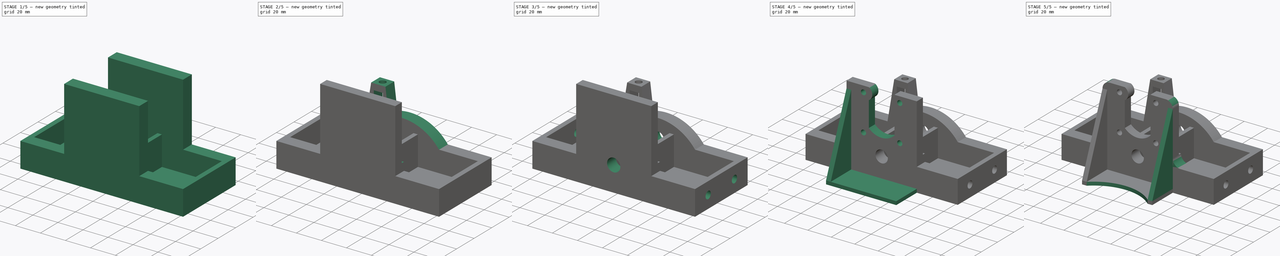
[diagram: build sequence overview — one tinted view per stage of 5, left to right]
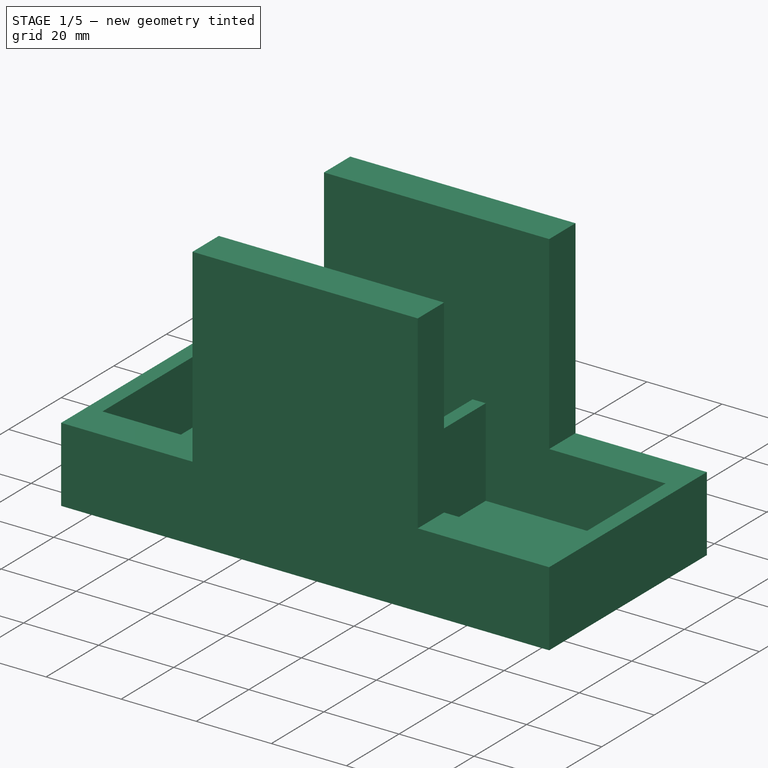
[diagram: stage 1 of 5 — iso view after this stage's code; geometry added in this stage tinted green]
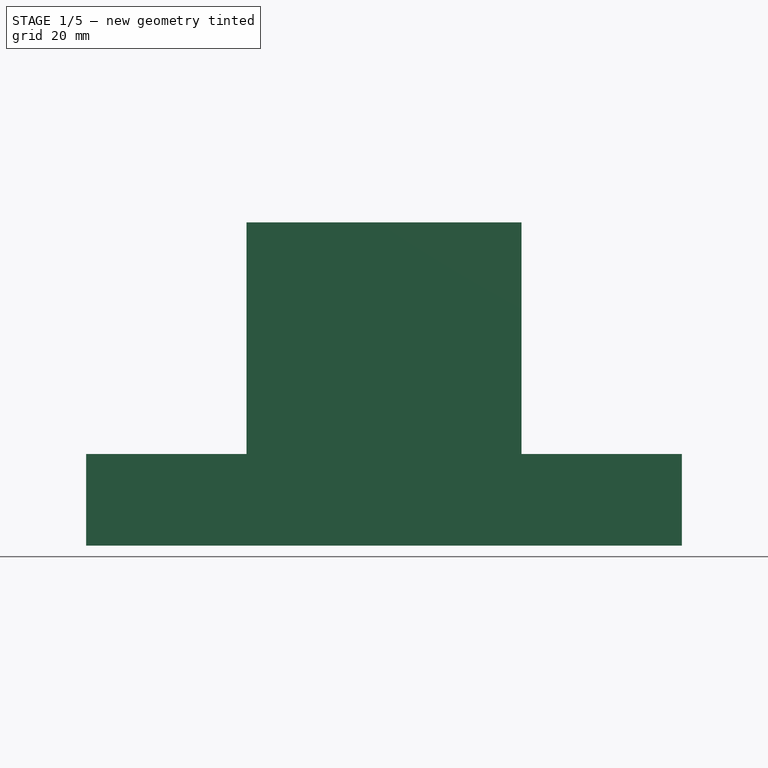
[diagram: stage 1 of 5 — front view after this stage's code; geometry added in this stage tinted green]
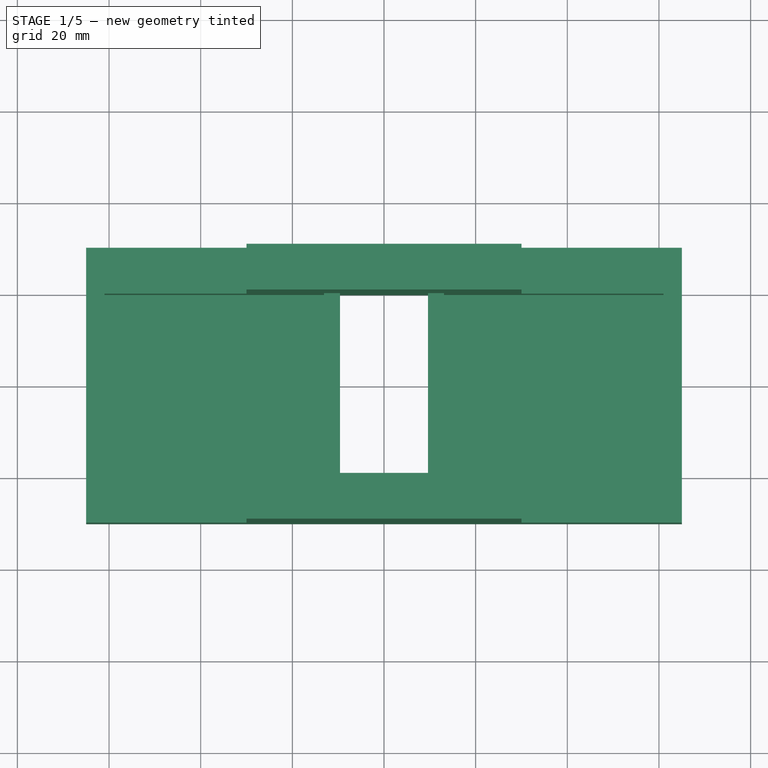
[diagram: stage 1 of 5 — top view after this stage's code; geometry added in this stage tinted green]
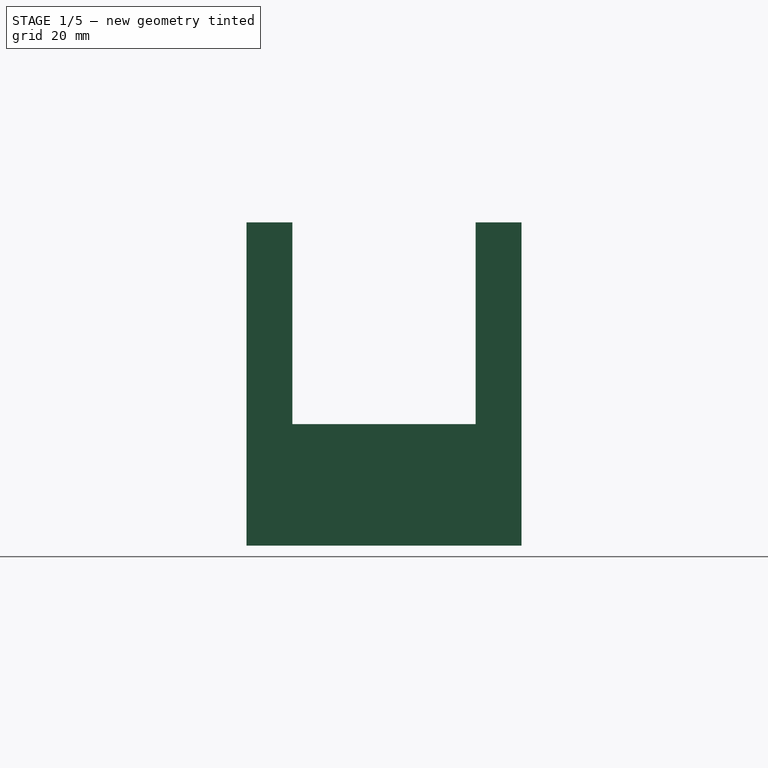
[diagram: stage 1 of 5 — right view after this stage's code; geometry added in this stage tinted green]
FCSTD DOCUMENT
Label: Z_MotorMount
objects: Sketcher::SketchObject×15, PartDesign::Pocket×11, PartDesign::Pad×4, PartDesign::Mirrored×2, PartDesign::Fillet×2, Part::Feature×1
note: 50 computed .brp shape members not serialized (recipe doc carries the construction recipe); baked Part::Feature solids carry a one-line shape summary decoded from their .brp

FEATURE [Sketcher::SketchObject] Sketch
  Placement = pos=(0,0,0) rot=(1,0,0;1.5708rad)
  sketch-geometry (8):
    g0: LineSegment StartX=-65 StartY=0 StartZ=0 EndX=65 EndY=0 EndZ=0
    g1: LineSegment StartX=65 StartY=0 StartZ=0 EndX=65 EndY=20 EndZ=0
    g2: LineSegment StartX=65 StartY=20 StartZ=0 EndX=30 EndY=20 EndZ=0
    g3: LineSegment StartX=-65 StartY=20 StartZ=0 EndX=-65 EndY=0 EndZ=0
    g4: LineSegment StartX=30 StartY=20 StartZ=0 EndX=30 EndY=70.552 EndZ=0
    g5: LineSegment StartX=30 StartY=70.552 StartZ=0 EndX=-30 EndY=70.552 EndZ=0
    g6: LineSegment StartX=-30 StartY=70.552 StartZ=0 EndX=-30 EndY=20 EndZ=0
    g7: LineSegment StartX=-30 StartY=20 StartZ=0 EndX=-65 EndY=20 EndZ=0
  constraints (24):
    c: Coincident(g0,g1)
    c: Coincident(g1,g2)
    c: Coincident(g7,g3)
    c: Coincident(g3,g0)
    c: Horizontal(g0)
    c: Horizontal(g2)
    c: Vertical(g1)
    c: Vertical(g3)
    c: Coincident(g4,g5)
    c: Coincident(g5,g6)
    c: Horizontal(g5)
    c: Vertical(g4)
    c: Vertical(g6)
    c: Coincident(g2,g4)
    c: Coincident(g7,g6)
    c: Tangent(g2,g7)
    c: Equal(g7,g2)
    c: Equal(g3,g1)
    c: DistanceX(g0) = 130
    c: DistanceY(g1) = 20
    c: DistanceX(g5) = -60
    c: PointOnObject(g0,g-1)
    c: Symmetric(g5,g4,g-2)
    c: DistanceY(g0,g5) = 70.552
FEATURE [PartDesign::Pad] Pad
  Length = 60
  Length2 = 100
  Midplane = true
  Placement = pos=(0,0,0) rot=(1,0,0;1.5708rad)
  Sketch = -> Sketch
  Type = 0
FEATURE [Sketcher::SketchObject] Sketch001
  ExternalGeometry = -> [Pad]
  Placement = pos=(0,0,70.552) rot=(0,0,1;3.14159rad)
  Support = -> Pad [Face6]
  sketch-geometry (5):
    g0: LineSegment StartX=-61 StartY=20 StartZ=0 EndX=61 EndY=20 EndZ=0
    g1: LineSegment StartX=61 StartY=20 StartZ=0 EndX=61 EndY=-20 EndZ=0
    g2: LineSegment StartX=61 StartY=-20 StartZ=0 EndX=-61 EndY=-20 EndZ=0
    g3: LineSegment StartX=-61 StartY=-20 StartZ=0 EndX=-61 EndY=20 EndZ=0
    g4: GeomPoint [constr] X=0 Y=0 Z=0
  constraints (12):
    c: Coincident(g0,g1)
    c: Coincident(g1,g2)
    c: Coincident(g2,g3)
    c: Coincident(g3,g0)
    c: Horizontal(g0)
    c: Horizontal(g2)
    c: Vertical(g1)
    c: Vertical(g3)
    c: Symmetric(g2,g0,g4)
    c: Coincident(g4,g-1)
    c: DistanceX(g0,g-3) = 4
    c: DistanceY(g1,g-3) = -10
FEATURE [PartDesign::Pocket] Pocket
  Length = 67.54
  Placement = pos=(0,0,0) rot=(1,0,0;1.5708rad)
  Sketch = -> Sketch001
  Type = 0
FEATURE [Sketcher::SketchObject] Sketch002
  ExternalGeometry = -> [Pocket]
  Placement = pos=(0,20,0) rot=(1,0,0;1.5708rad)
  Support = -> Pocket [Face15]
  sketch-geometry (4):
    g0: LineSegment StartX=-13.095 StartY=3.012 StartZ=0 EndX=13.095 EndY=3.012 EndZ=0
    g1: LineSegment StartX=13.095 StartY=3.012 StartZ=0 EndX=13.095 EndY=26.512 EndZ=0
    g2: LineSegment StartX=13.095 StartY=26.512 StartZ=0 EndX=-13.095 EndY=26.512 EndZ=0
    g3: LineSegment StartX=-13.095 StartY=26.512 StartZ=0 EndX=-13.095 EndY=3.012 EndZ=0
  constraints (12):
    c: Coincident(g0,g1)
    c: Coincident(g1,g2)
    c: Coincident(g2,g3)
    c: Coincident(g3,g0)
    c: Horizontal(g0)
    c: Horizontal(g2)
    c: Vertical(g1)
    c: Vertical(g3)
    c: DistanceX(g2) = -26.19
    c: DistanceY(g3) = -23.5
    c: Symmetric(g2,g1,g-2)
    c: PointOnObject(g0,g-3)
FEATURE [PartDesign::Pad] Pad001
  Length = 10
  Length2 = 100
  Placement = pos=(0,0,0) rot=(1,0,0;1.5708rad)
  Sketch = -> Sketch002
  Type = 1
FEATURE [Sketcher::SketchObject] Sketch003
  ExternalGeometry = -> [Pad001]
  Placement = pos=(0,0,26.512) rot=(0,0,1;3.14159rad)
  Support = -> Pad001 [Face21]
  sketch-geometry (4):
    g0: LineSegment StartX=-9.595 StartY=20 StartZ=0 EndX=9.595 EndY=20 EndZ=0
    g1: LineSegment StartX=9.595 StartY=20 StartZ=0 EndX=9.595 EndY=-20 EndZ=0
    g2: LineSegment StartX=9.595 StartY=-20 StartZ=0 EndX=-9.595 EndY=-20 EndZ=0
    g3: LineSegment StartX=-9.595 StartY=-20 StartZ=0 EndX=-9.595 EndY=20 EndZ=0
  constraints (11):
    c: DistanceX(g-3,g0) = -3.5
    c: Coincident(g3,g2)
    c: Coincident(g2,g1)
    c: Horizontal(g0)
    c: Coincident(g0,g1)
    c: Coincident(g0,g3)
    c: Vertical(g3)
    c: Vertical(g1)
    c: Symmetric(g2,g1,g-2)
    c: PointOnObject(g-3,g0)
    c: PointOnObject(g-3,g2)
FEATURE [PartDesign::Pocket] Pocket001
  Length = 5
  Placement = pos=(0,0,0) rot=(1,0,0;1.5708rad)
  Sketch = -> Sketch003
  Type = 1
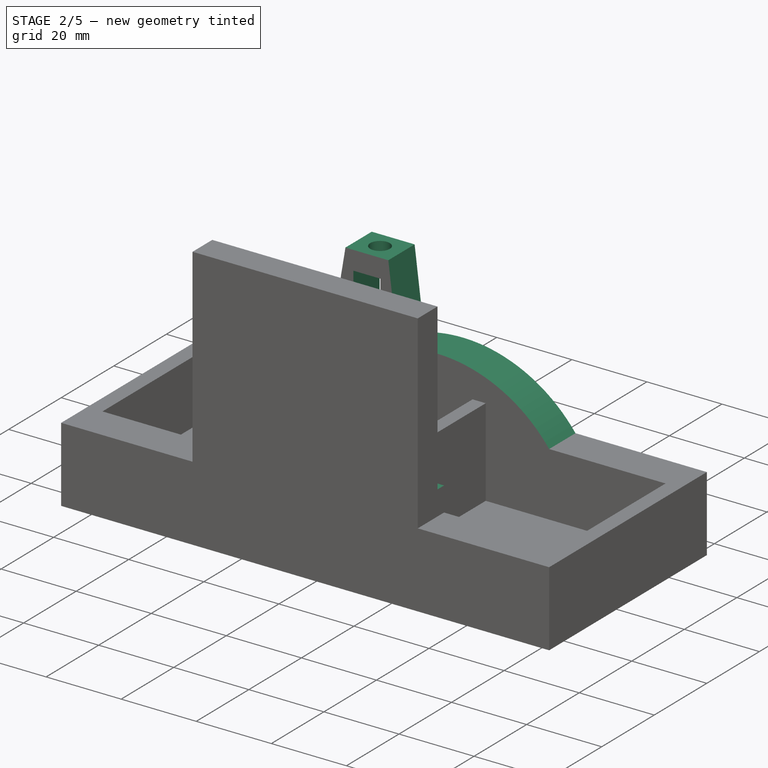
[diagram: stage 2 of 5 — iso view after this stage's code; geometry added in this stage tinted green]
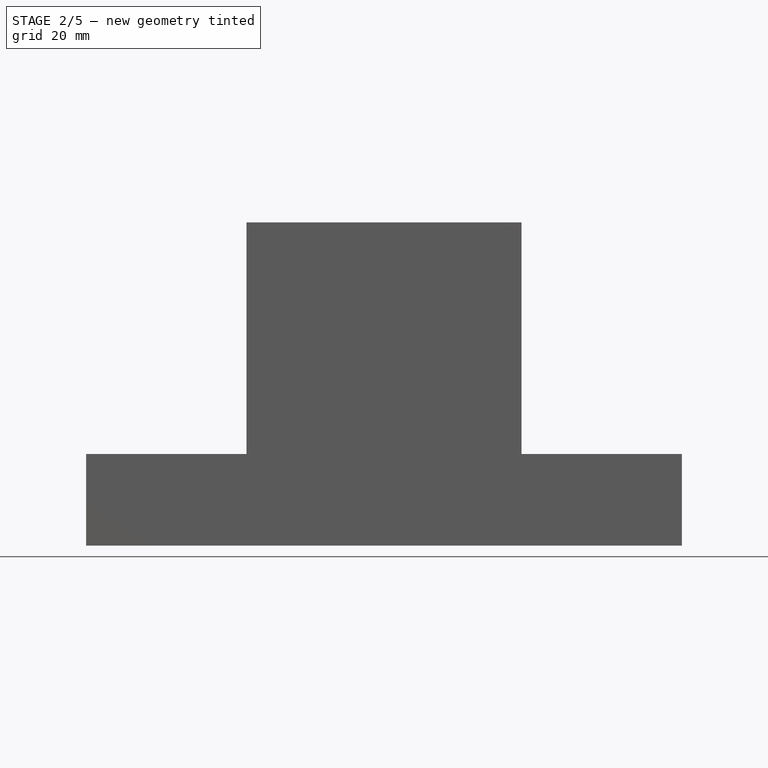
[diagram: stage 2 of 5 — front view after this stage's code; geometry added in this stage tinted green]
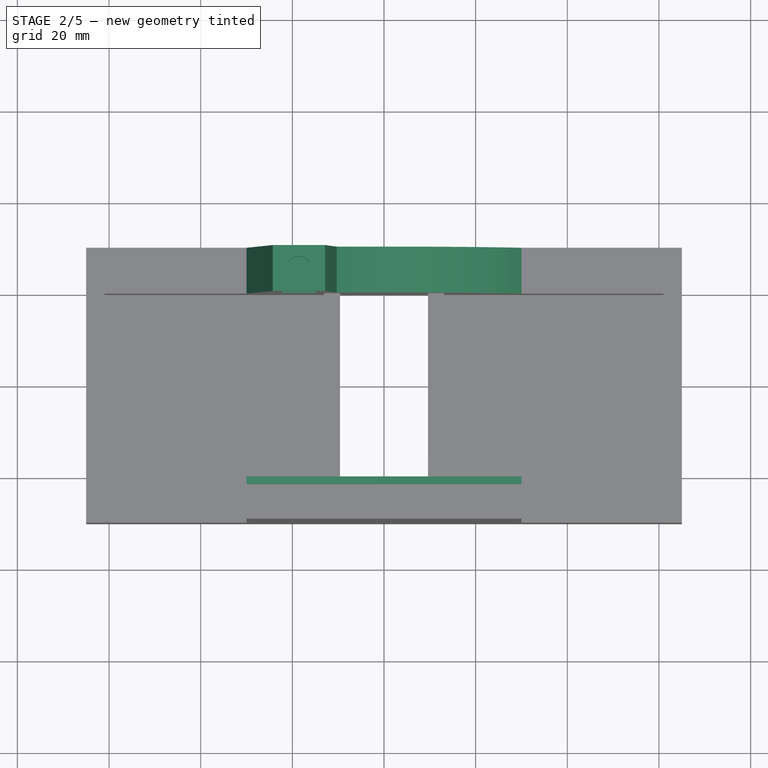
[diagram: stage 2 of 5 — top view after this stage's code; geometry added in this stage tinted green]
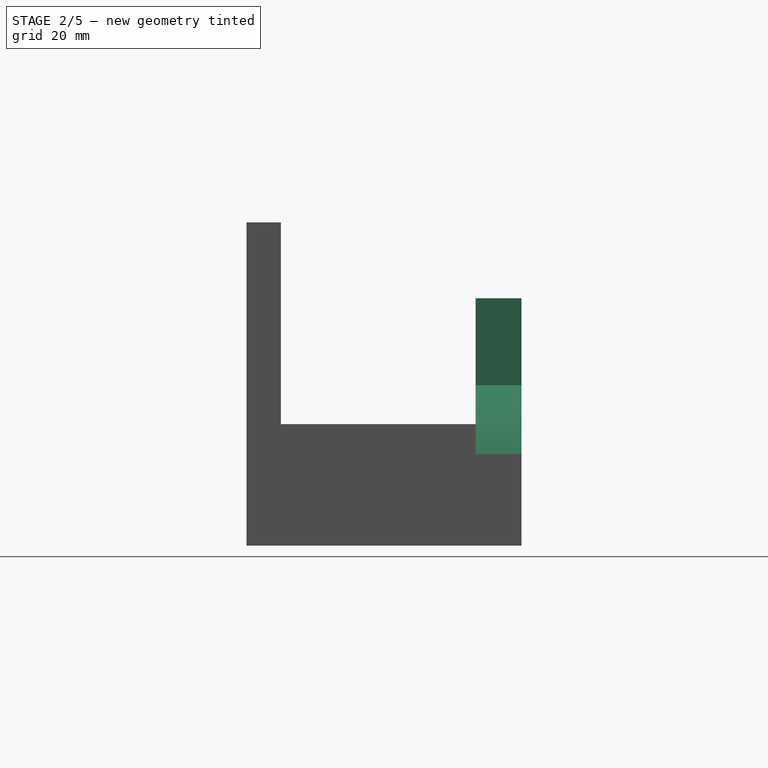
[diagram: stage 2 of 5 — right view after this stage's code; geometry added in this stage tinted green]
FEATURE [Sketcher::SketchObject] Sketch004
  ExternalGeometry = -> [Pocket001]
  Placement = pos=(0,-20,0) rot=(-1,0,0;1.5708rad)
  Support = -> Pocket001 [Face10]
  sketch-geometry (4):
    g0: LineSegment StartX=-30 StartY=-26.512 StartZ=0 EndX=-30 EndY=-70.552 EndZ=0
    g1: LineSegment StartX=-30 StartY=-70.552 StartZ=0 EndX=30 EndY=-70.552 EndZ=0
    g2: LineSegment StartX=30 StartY=-70.552 StartZ=0 EndX=30 EndY=-26.512 EndZ=0
    g3: LineSegment StartX=30 StartY=-26.512 StartZ=0 EndX=-30 EndY=-26.512 EndZ=0
  constraints (11):
    c: Coincident(g1,g2)
    c: Horizontal(g1)
    c: Vertical(g0)
    c: Vertical(g2)
    c: Equal(g0,g2)
    c: Symmetric(g3,g3,g-2)
    c: Coincident(g3,g0)
    c: Coincident(g1,g0)
    c: Coincident(g3,g2)
    c: PointOnObject(g-3,g3)
    c: Coincident(g0,g-4)
FEATURE [PartDesign::Pocket] Pocket002
  Length = 2.5
  Placement = pos=(0,0,0) rot=(1,0,0;1.5708rad)
  Sketch = -> Sketch004
  Type = 0
FEATURE [Sketcher::SketchObject] Sketch005
  ExternalGeometry = -> [Pocket002]
  Placement = pos=(0,30,0) rot=(-1,0,0;1.5708rad)
  Support = -> Pocket002 [Face4]
  sketch-geometry (8):
    g0: ArcOfCircle CenterX=0 CenterY=2.5 CenterZ=0 NormalX=0 NormalY=0 NormalZ=1 Radius=37.5 StartAngle=4.43392 EndAngle=5.63968
    g1: LineSegment StartX=-10.308 StartY=-33.5554 StartZ=0 EndX=-12.85 EndY=-54 EndZ=0
    g2: LineSegment StartX=-12.85 StartY=-54 StartZ=0 EndX=-24.272 EndY=-54 EndZ=0
    g3: LineSegment StartX=-24.272 StartY=-54 StartZ=0 EndX=-30 EndY=-20 EndZ=0
    g4: GeomPoint [constr] X=-18.561 Y=-54 Z=0
    g5: LineSegment StartX=-30 StartY=-20 StartZ=0 EndX=-30 EndY=-71.552 EndZ=0
    g6: LineSegment StartX=-30 StartY=-71.552 StartZ=0 EndX=30 EndY=-71.552 EndZ=0
    g7: LineSegment StartX=30 StartY=-71.552 StartZ=0 EndX=30 EndY=-20 EndZ=0
  constraints (21):
    c: PointOnObject(g0,g-2)
    c: Radius(g0) = 37.5
    c: Coincident(g1,g2)
    c: Horizontal(g2)
    c: Coincident(g2,g3)
    c: Symmetric(g2,g1,g4)
    c: DistanceX(g2) = -11.422
    c: Horizontal(g6)
    c: Coincident(g6,g7)
    c: Vertical(g7)
    c: Coincident(g0,g7)
    c: Coincident(g0,g1)
    c: Coincident(g3,g5)
    c: Coincident(g5,g6)
    c: DistanceX(g-1,g4) = -18.561
    c: Vertical(g5)
    c: Coincident(g3,g-3)
    c: DistanceY(g-1,g2) = -54
    c: DistanceX(g-3,g0) = 54.692
    c: DistanceY(g6,g-5) = 1
    c: Coincident(g0,g-4)
FEATURE [PartDesign::Pocket] Pocket003
  Length = 10
  Placement = pos=(0,0,0) rot=(1,0,0;1.5708rad)
  Sketch = -> Sketch005
  Type = 0
FEATURE [Sketcher::SketchObject] Sketch007  label="Sketch006"
  ExternalGeometry = -> [Pocket003]
  Placement = pos=(0,30,0) rot=(-1,0,0;1.5708rad)
  Support = -> Pocket003 [Face4]
  sketch-geometry (7):
    g0: LineSegment StartX=-22.161 StartY=-27 StartZ=0 EndX=-14.961 EndY=-27 EndZ=0
    g1: LineSegment StartX=-14.961 StartY=-27 StartZ=0 EndX=-14.961 EndY=-49 EndZ=0
    g2: LineSegment StartX=-14.961 StartY=-49 StartZ=0 EndX=-22.161 EndY=-49 EndZ=0
    g3: LineSegment StartX=-22.161 StartY=-49 StartZ=0 EndX=-22.161 EndY=-27 EndZ=0
    g4: GeomPoint [constr] X=-18.561 Y=-49 Z=0
    g5: GeomPoint [constr] X=-18.561 Y=-54 Z=0
    g6: LineSegment [constr] StartX=-18.561 StartY=-49 StartZ=0 EndX=-18.561 EndY=-54 EndZ=0
  constraints (16):
    c: Coincident(g0,g1)
    c: Coincident(g1,g2)
    c: Coincident(g2,g3)
    c: Coincident(g3,g0)
    c: Horizontal(g0)
    c: Horizontal(g2)
    c: Vertical(g1)
    c: Vertical(g3)
    c: DistanceY(g3) = 22
    c: DistanceX(g0) = 7.2
    c: Symmetric(g2,g2,g4)
    c: Coincident(g6,g4)
    c: Coincident(g6,g5)
    c: Vertical(g6)
    c: DistanceY(g-1,g1) = -49
    c: Symmetric(g-3,g-3,g5)
FEATURE [PartDesign::Pocket] Pocket004
  Length = 10
  Placement = pos=(0,0,0) rot=(1,0,0;1.5708rad)
  Sketch = -> Sketch007
  Type = 0
FEATURE [Sketcher::SketchObject] Sketch012  label="Sketch007"
  ExternalGeometry = -> [Pocket004]
  Placement = pos=(0,0,54) rot=(0,0,1;3.14159rad)
  Support = -> Pocket004 [Face18]
  sketch-geometry (3):
    g0: Circle CenterX=18.561 CenterY=-25 CenterZ=0 NormalX=0 NormalY=0 NormalZ=1 Radius=2.6
    g1: LineSegment [constr] StartX=18.561 StartY=-25 StartZ=0 EndX=18.561 EndY=-30 EndZ=0
    g2: LineSegment [constr] StartX=18.561 StartY=-25 StartZ=0 EndX=24.272 EndY=-25 EndZ=0
  constraints (7):
    c: Coincident(g1,g0)
    c: Coincident(g2,g0)
    c: Horizontal(g2)
    c: Vertical(g1)
    c: Radius(g0) = 2.6
    c: Symmetric(g-4,g-4,g1)
    c: Symmetric(g-3,g-3,g2)
FEATURE [PartDesign::Pocket] Pocket005
  Length = 6
  Placement = pos=(0,0,0) rot=(1,0,0;1.5708rad)
  Sketch = -> Sketch012
  Type = 0
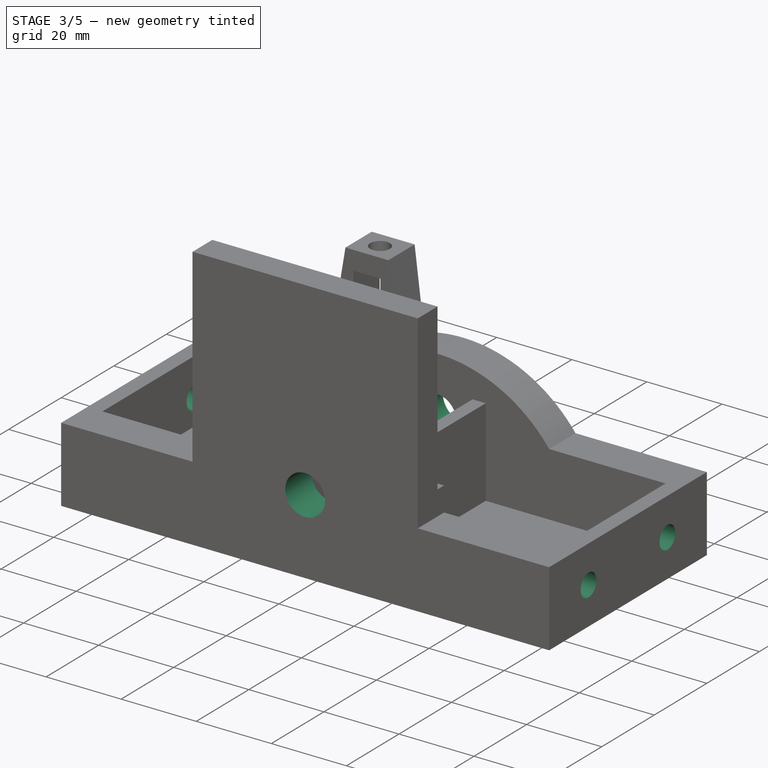
[diagram: stage 3 of 5 — iso view after this stage's code; geometry added in this stage tinted green]
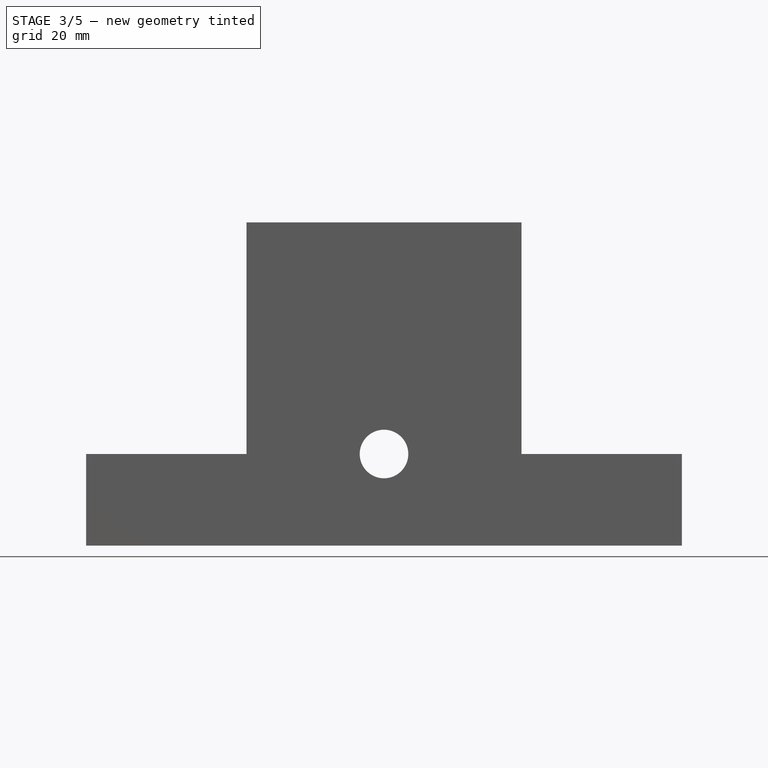
[diagram: stage 3 of 5 — front view after this stage's code; geometry added in this stage tinted green]
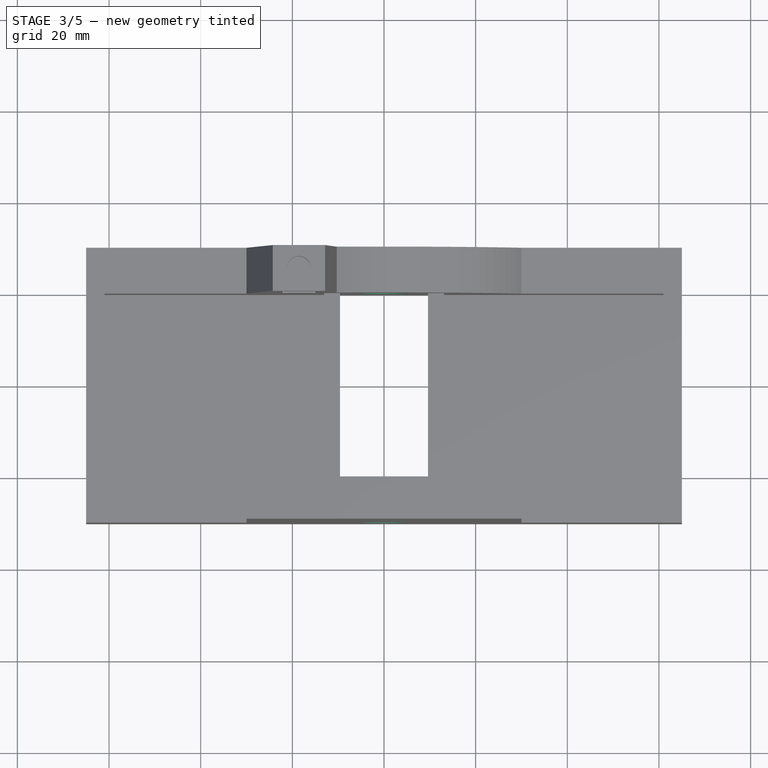
[diagram: stage 3 of 5 — top view after this stage's code; geometry added in this stage tinted green]
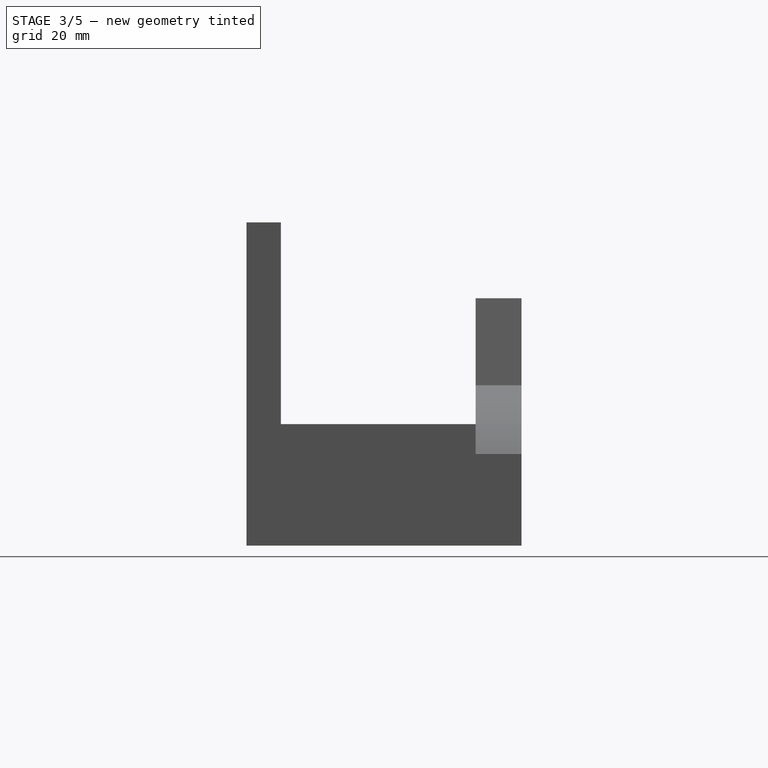
[diagram: stage 3 of 5 — right view after this stage's code; geometry added in this stage tinted green]
FEATURE [Sketcher::SketchObject] Sketch010  label="Sketch008"
  Placement = pos=(65,0,0) rot=(0.707107,0,0.707107;3.14159rad)
  Support = -> Pocket005 [Face15]
  sketch-geometry (2):
    g0: Circle CenterX=10 CenterY=15 CenterZ=0 NormalX=0 NormalY=0 NormalZ=1 Radius=3
    g1: Circle CenterX=10 CenterY=-15 CenterZ=0 NormalX=0 NormalY=0 NormalZ=1 Radius=3
  constraints (5):
    c: Symmetric(g1,g0,g-1)
    c: Equal(g1,g0)
    c: Radius(g1) = 3
    c: DistanceY(g1,g0) = 30
    c: DistanceX(g0) = 10
FEATURE [PartDesign::Pocket] Pocket006
  Length = 4
  Placement = pos=(0,0,0) rot=(1,0,0;1.5708rad)
  Sketch = -> Sketch010
  Type = 0
FEATURE [PartDesign::Mirrored] Mirrored
  Originals = -> [Pocket006]
  Placement = pos=(0,0,0) rot=(1,0,0;1.5708rad)
  StdMirrorPlane = YZ
FEATURE [Sketcher::SketchObject] Sketch009
  Placement = pos=(0,30,0) rot=(-1,0,0;1.5708rad)
  Support = -> Mirrored [Face7]
  sketch-geometry (1):
    g0: Circle CenterX=0 CenterY=-20 CenterZ=0 NormalX=0 NormalY=0 NormalZ=1 Radius=5.3
  constraints (3):
    c: PointOnObject(g0,g-2)
    c: Radius(g0) = 5.3
    c: DistanceY(g-1,g0) = -20
FEATURE [PartDesign::Pocket] Pocket007
  Length = 5
  Placement = pos=(0,0,0) rot=(1,0,0;1.5708rad)
  Sketch = -> Sketch009
  Type = 1
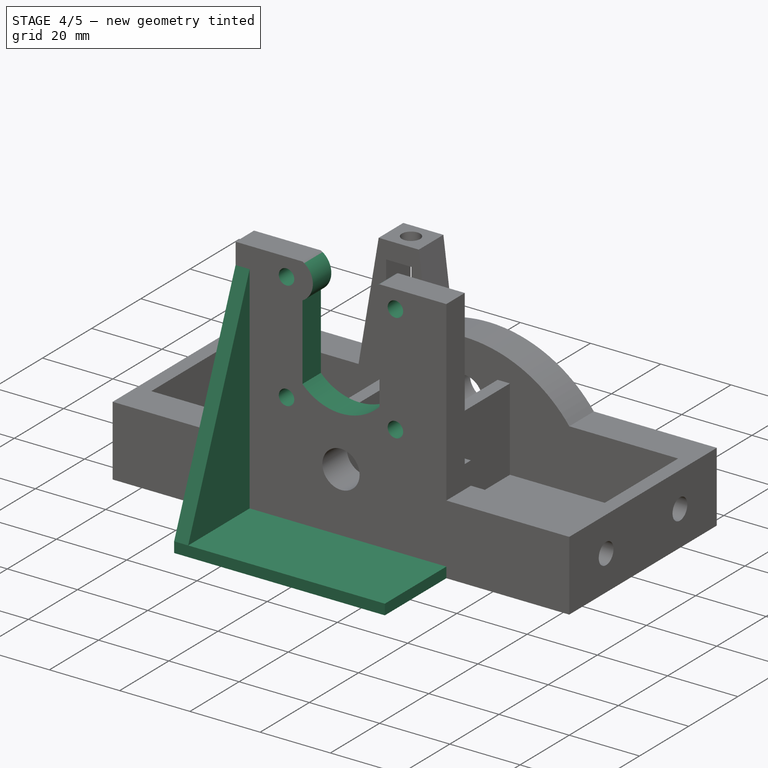
[diagram: stage 4 of 5 — iso view after this stage's code; geometry added in this stage tinted green]
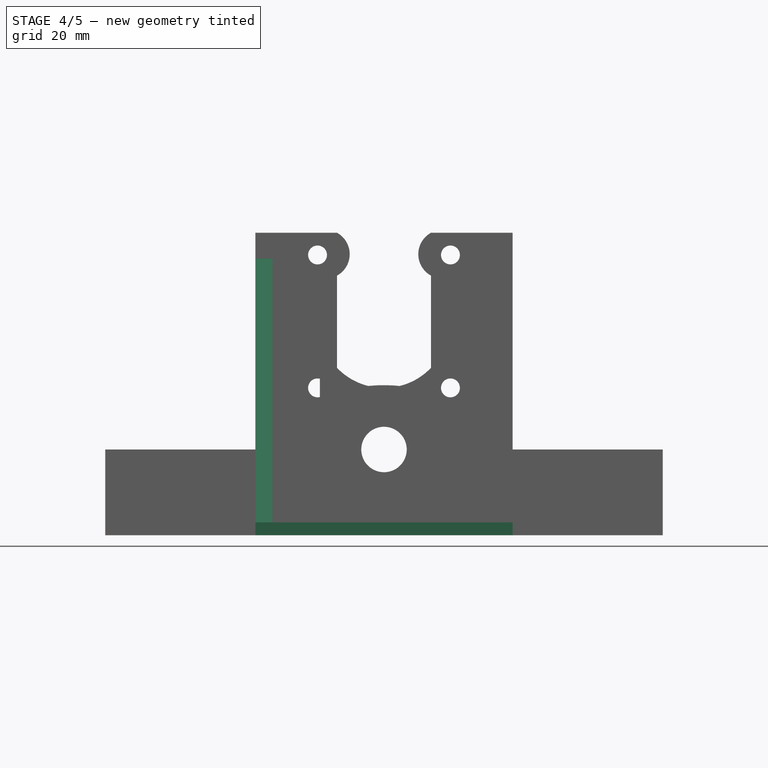
[diagram: stage 4 of 5 — front view after this stage's code; geometry added in this stage tinted green]
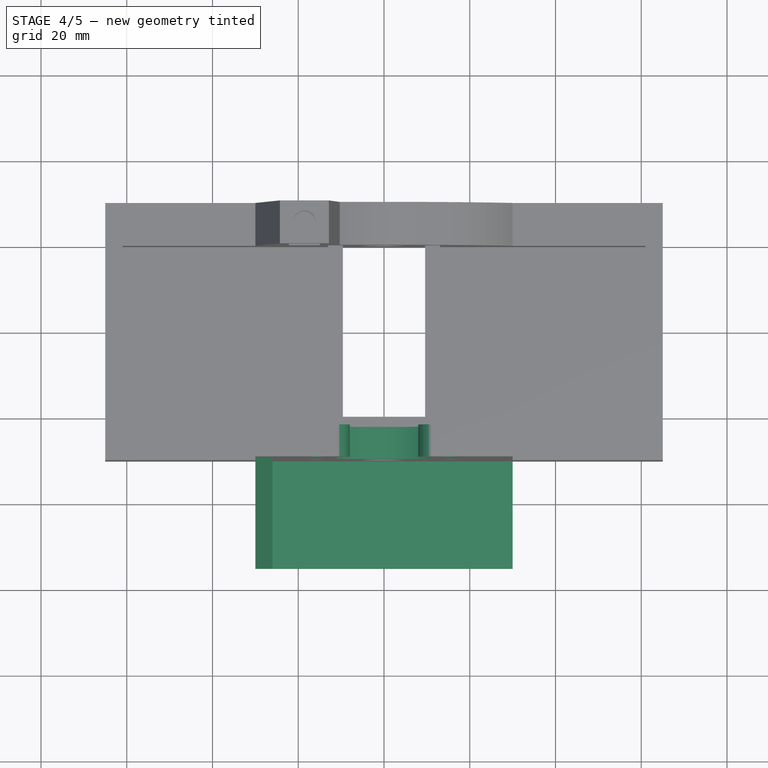
[diagram: stage 4 of 5 — top view after this stage's code; geometry added in this stage tinted green]
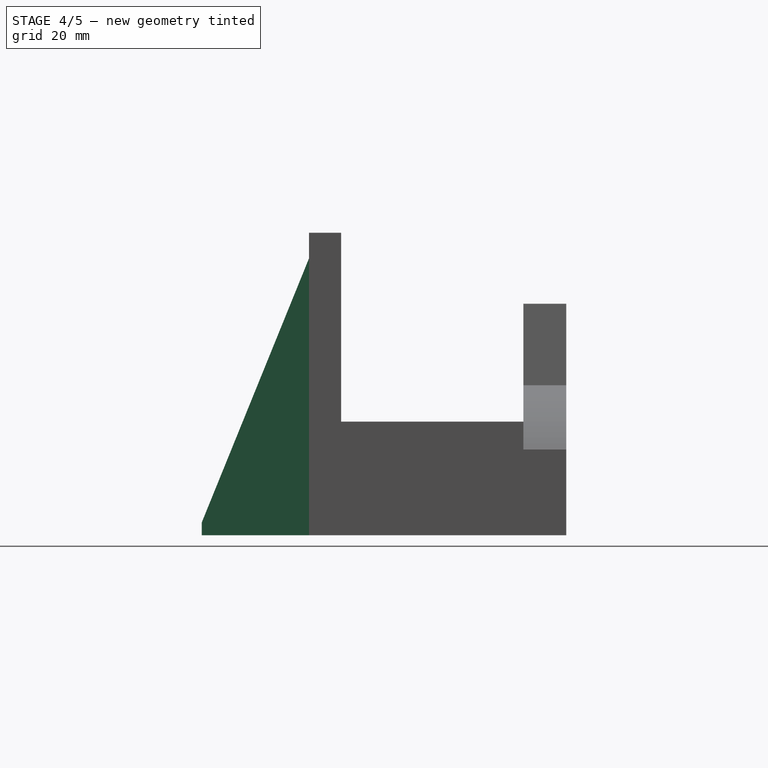
[diagram: stage 4 of 5 — right view after this stage's code; geometry added in this stage tinted green]
FEATURE [Sketcher::SketchObject] Sketch020  label="Sketch010"
  ExternalGeometry = -> [Pocket007]
  Placement = pos=(0,-30,0) rot=(1,0,0;1.5708rad)
  Support = -> Pocket007 [Face8]
  sketch-geometry (7):
    g0: ArcOfCircle CenterX=0 CenterY=49.552 CenterZ=0 NormalX=0 NormalY=0 NormalZ=1 Radius=15.184 StartAngle=3.90597 EndAngle=5.51881
    g1: ArcOfCircle CenterX=-13.703 CenterY=65.552 CenterZ=0 NormalX=0 NormalY=0 NormalZ=1 Radius=5.70297 StartAngle=5.21415 EndAngle=7.35222
    g2: LineSegment StartX=-10.96 StartY=70.552 StartZ=0 EndX=10.96 EndY=70.552 EndZ=0
    g3: ArcOfCircle CenterX=13.703 CenterY=65.552 CenterZ=0 NormalX=0 NormalY=0 NormalZ=1 Radius=5.70297 StartAngle=2.07256 EndAngle=4.21063
    g4: LineSegment [constr] StartX=-13.703 StartY=65.552 StartZ=0 EndX=-8 EndY=65.552 EndZ=0
    g5: LineSegment StartX=-10.96 StartY=39.0433 StartZ=0 EndX=-10.96 EndY=60.552 EndZ=0
    g6: LineSegment StartX=10.96 StartY=39.0433 StartZ=0 EndX=10.96 EndY=60.552 EndZ=0
  constraints (24):
    c: Radius(g0) = 15.184
    c: Equal(g3,g1)
    c: Horizontal(g2)
    c: Coincident(g1,g2)
    c: Coincident(g3,g2)
    c: PointOnObject(g0,g-2)
    c: Coincident(g4,g1)
    c: Horizontal(g4)
    c: PointOnObject(g4,g1)
    c: Coincident(g5,g0)
    c: Vertical(g5)
    c: Coincident(g6,g0)
    c: Coincident(g6,g3)
    c: Coincident(g5,g1)
    c: Vertical(g6)
    c: DistanceX(g0,g0) = 21.92
    c: Symmetric(g1,g2,g-2)
    c: DistanceX(g2) = 21.92
    c: Symmetric(g0,g0,g-2)
    c: Equal(g6,g5)
    c: DistanceX(g4,g0) = 8
    c: DistanceY(g3,g2) = 10
    c: PointOnObject(g2,g-3)
    c: DistanceY(g0,g-3) = 21
FEATURE [PartDesign::Pocket] Pocket008
  Length = 8
  Placement = pos=(0,0,0) rot=(1,0,0;1.5708rad)
  Sketch = -> Sketch020
  Type = 0
FEATURE [Sketcher::SketchObject] Sketch011
  ExternalGeometry = -> [Pocket008]
  Placement = pos=(0,-30,0) rot=(1,0,0;1.5708rad)
  Support = -> Pocket008 [Face8]
  sketch-geometry (8):
    g0: LineSegment [constr] StartX=-15.5 StartY=65.368 StartZ=0 EndX=15.5 EndY=65.368 EndZ=0
    g1: LineSegment [constr] StartX=15.5 StartY=65.368 StartZ=0 EndX=15.5 EndY=34.368 EndZ=0
    g2: LineSegment [constr] StartX=15.5 StartY=34.368 StartZ=0 EndX=-15.5 EndY=34.368 EndZ=0
    g3: LineSegment [constr] StartX=-15.5 StartY=34.368 StartZ=0 EndX=-15.5 EndY=65.368 EndZ=0
    g4: Circle CenterX=-15.5 CenterY=65.368 CenterZ=0 NormalX=0 NormalY=0 NormalZ=1 Radius=2.2
    g5: Circle CenterX=15.5 CenterY=65.368 CenterZ=0 NormalX=0 NormalY=0 NormalZ=1 Radius=2.2
    g6: Circle CenterX=-15.5 CenterY=34.368 CenterZ=0 NormalX=0 NormalY=0 NormalZ=1 Radius=2.2
    g7: Circle CenterX=15.5 CenterY=34.368 CenterZ=0 NormalX=0 NormalY=0 NormalZ=1 Radius=2.2
  constraints (20):
    c: Coincident(g0,g1)
    c: Coincident(g1,g2)
    c: Coincident(g2,g3)
    c: Coincident(g3,g0)
    c: Horizontal(g0)
    c: Horizontal(g2)
    c: Vertical(g1)
    c: Vertical(g3)
    c: Equal(g0,g3)
    c: Coincident(g4,g0)
    c: Coincident(g5,g0)
    c: Coincident(g6,g2)
    c: Coincident(g7,g1)
    c: Equal(g7,g6)
    c: Equal(g6,g4)
    c: Equal(g4,g5)
    c: DistanceY(g1) = -31
    c: Symmetric(g0,g0,g-2)
    c: Radius(g6) = 2.2
    c: Tangent(g2,g-3)
FEATURE [PartDesign::Pocket] Pocket009
  Length = 8
  Placement = pos=(0,0,0) rot=(1,0,0;1.5708rad)
  Sketch = -> Sketch011
  Type = 0
FEATURE [Sketcher::SketchObject] Sketch021
  ExternalGeometry = -> [Pocket009]
  Placement = pos=(0,0,0) rot=(1,0,0;3.14159rad)
  Support = -> Pocket009 [Face32]
  sketch-geometry (4):
    g0: LineSegment StartX=-30 StartY=30 StartZ=0 EndX=30 EndY=30 EndZ=0
    g1: LineSegment StartX=30 StartY=30 StartZ=0 EndX=30 EndY=55 EndZ=0
    g2: LineSegment StartX=30 StartY=55 StartZ=0 EndX=-30 EndY=55 EndZ=0
    g3: LineSegment StartX=-30 StartY=55 StartZ=0 EndX=-30 EndY=30 EndZ=0
  constraints (12):
    c: Coincident(g0,g1)
    c: Coincident(g1,g2)
    c: Coincident(g2,g3)
    c: Coincident(g3,g0)
    c: Horizontal(g0)
    c: Horizontal(g2)
    c: Vertical(g1)
    c: Vertical(g3)
    c: Symmetric(g2,g1,g-2)
    c: PointOnObject(g0,g-3)
    c: DistanceX(g2) = -60
    c: DistanceY(g1) = 25
FEATURE [PartDesign::Pad] Pad002
  Length = 3
  Length2 = 100
  Placement = pos=(0,0,0) rot=(1,0,0;1.5708rad)
  Reversed = true
  Sketch = -> Sketch021
  Type = 0
FEATURE [Sketcher::SketchObject] Sketch022
  ExternalGeometry = -> [Pad002]
  Placement = pos=(-30,0,0) rot=(0.707107,0,-0.707107;3.14159rad)
  Support = -> Pad002 [Face35]
  sketch-geometry (3):
    g0: LineSegment StartX=-3 StartY=55 StartZ=0 EndX=-3 EndY=30 EndZ=0
    g1: LineSegment StartX=-3 StartY=30 StartZ=0 EndX=-64.551 EndY=30 EndZ=0
    g2: LineSegment StartX=-64.551 StartY=30 StartZ=0 EndX=-3 EndY=55 EndZ=0
  constraints (8):
    c: Vertical(g0)
    c: Coincident(g0,g1)
    c: Horizontal(g1)
    c: Coincident(g1,g2)
    c: Coincident(g2,g0)
    c: Coincident(g0,g-3)
    c: PointOnObject(g-4,g1)
    c: DistanceX(g-3,g1) = -64.551
FEATURE [PartDesign::Pad] Pad003
  Length = 4
  Length2 = 100
  Placement = pos=(0,0,0) rot=(1,0,0;1.5708rad)
  Reversed = true
  Sketch = -> Sketch022
  Type = 0
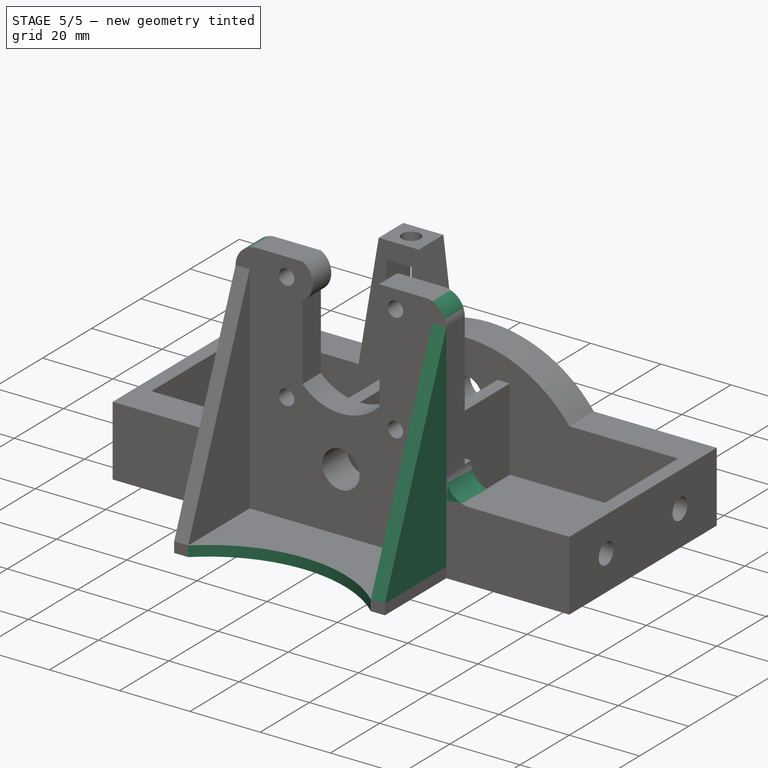
[diagram: stage 5 of 5 — iso view after this stage's code; geometry added in this stage tinted green]
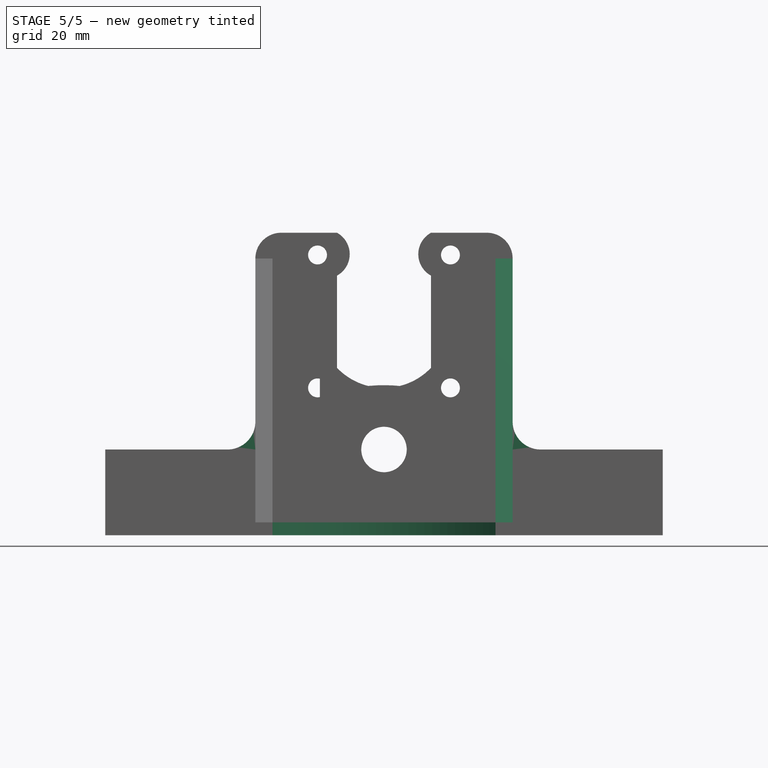
[diagram: stage 5 of 5 — front view after this stage's code; geometry added in this stage tinted green]
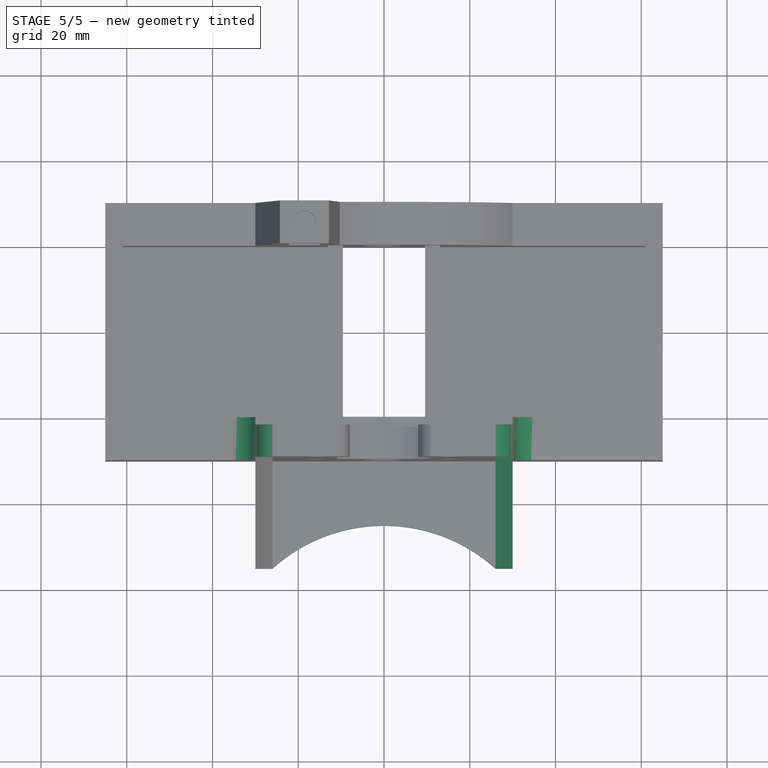
[diagram: stage 5 of 5 — top view after this stage's code; geometry added in this stage tinted green]
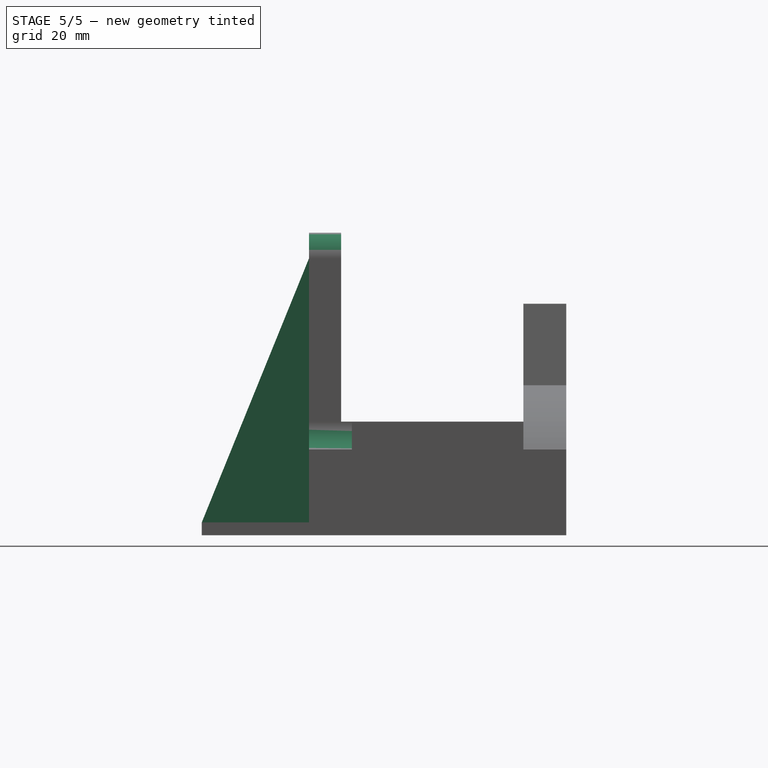
[diagram: stage 5 of 5 — right view after this stage's code; geometry added in this stage tinted green]
FEATURE [PartDesign::Mirrored] Mirrored001
  Originals = -> [Pad003]
  Placement = pos=(0,0,0) rot=(1,0,0;1.5708rad)
  StdMirrorPlane = YZ
FEATURE [Sketcher::SketchObject] Sketch023
  ExternalGeometry = -> [Mirrored001]
  Placement = pos=(0,0,3) rot=(0,0,1;3.14159rad)
  Support = -> Mirrored001 [Face51]
  sketch-geometry (3):
    g0: ArcOfCircle CenterX=0 CenterY=83.8 CenterZ=0 NormalX=0 NormalY=0 NormalZ=1 Radius=38.8 StartAngle=3.97804 EndAngle=5.44674
    g1: LineSegment StartX=-26 StartY=55 StartZ=0 EndX=26 EndY=55 EndZ=0
    g2: LineSegment [constr] StartX=0 StartY=55 StartZ=0 EndX=0 EndY=45 EndZ=0
  constraints (9):
    c: PointOnObject(g0,g-2)
    c: Coincident(g0,g-3)
    c: Coincident(g1,g0)
    c: Coincident(g1,g0)
    c: Horizontal(g1)
    c: PointOnObject(g2,g0)
    c: Vertical(g2)
    c: Symmetric(g1,g1,g2)
    c: DistanceY(g2) = -10
FEATURE [PartDesign::Pocket] Pocket010
  Length = 3
  Placement = pos=(0,0,0) rot=(1,0,0;1.5708rad)
  Sketch = -> Sketch023
  Type = 0
FEATURE [PartDesign::Fillet] Fillet
  Base = -> Pocket010 [Edge90,Edge113]
  Placement = pos=(0,0,0) rot=(1,0,0;1.5708rad)
  Radius = 6
FEATURE [PartDesign::Fillet] Fillet001
  Base = -> Fillet [Edge5,Edge71]
  Placement = pos=(0,0,0) rot=(1,0,0;1.5708rad)
  Radius = 6.5
FEATURE [Part::Feature] Fillet001001  label="PartRefine"
  shape: bbox 130 x 85 x 70.55 mm, 63 faces (baked)
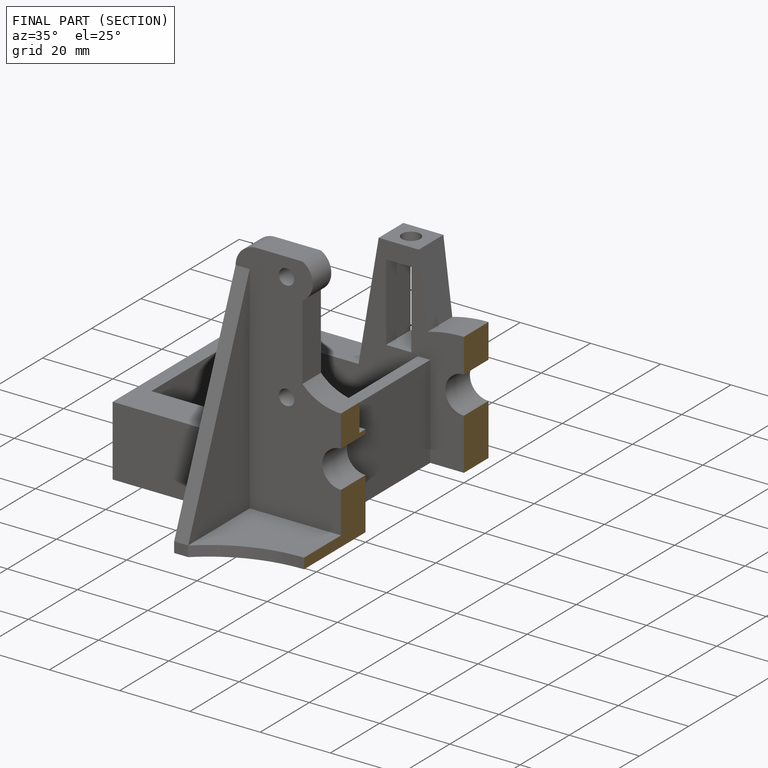
[diagram: finished part — half-section view (interior)]
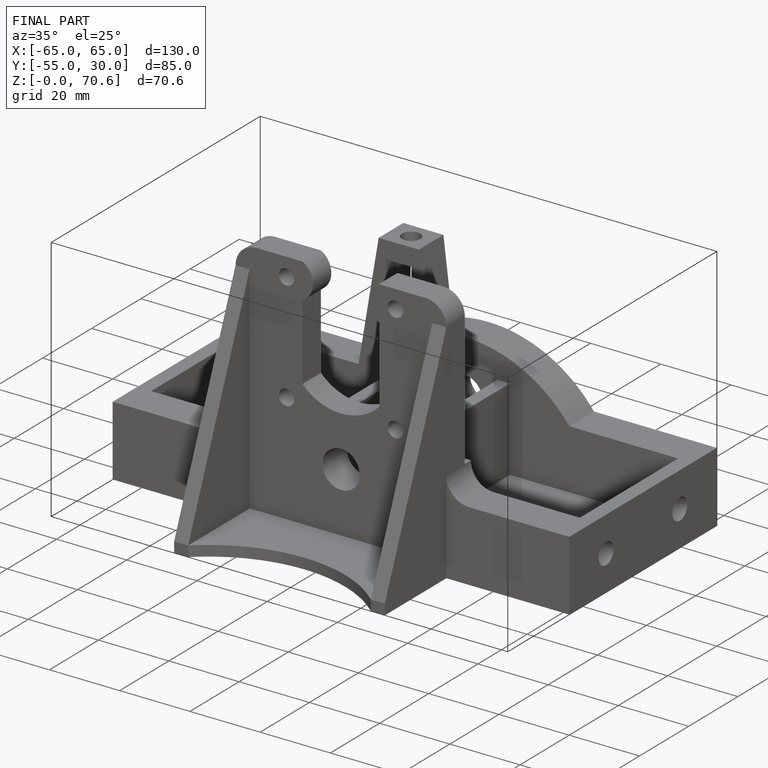
[diagram: finished part — iso view with bounding-box wireframe]
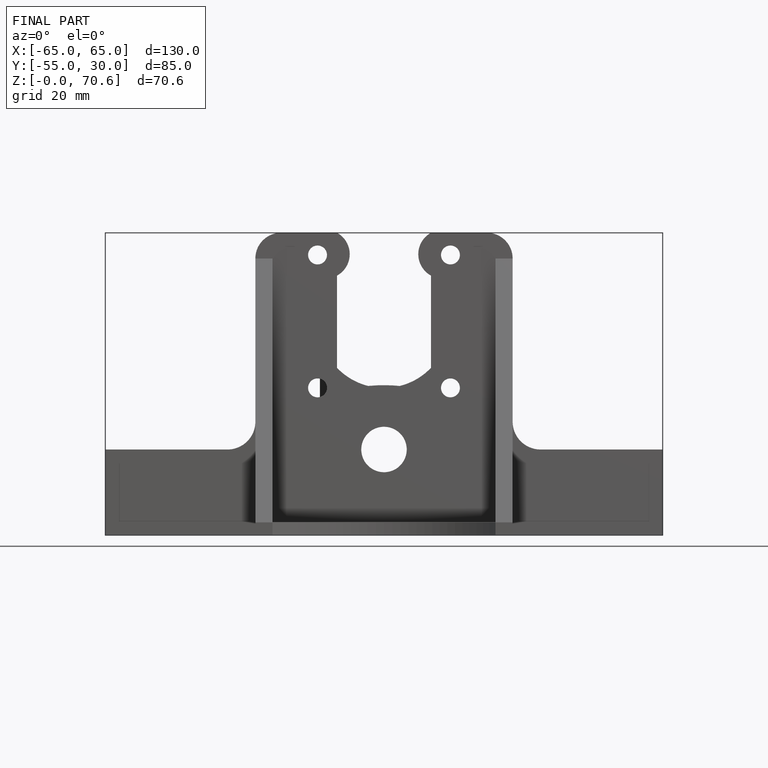
[diagram: finished part — front view with bounding-box wireframe]
